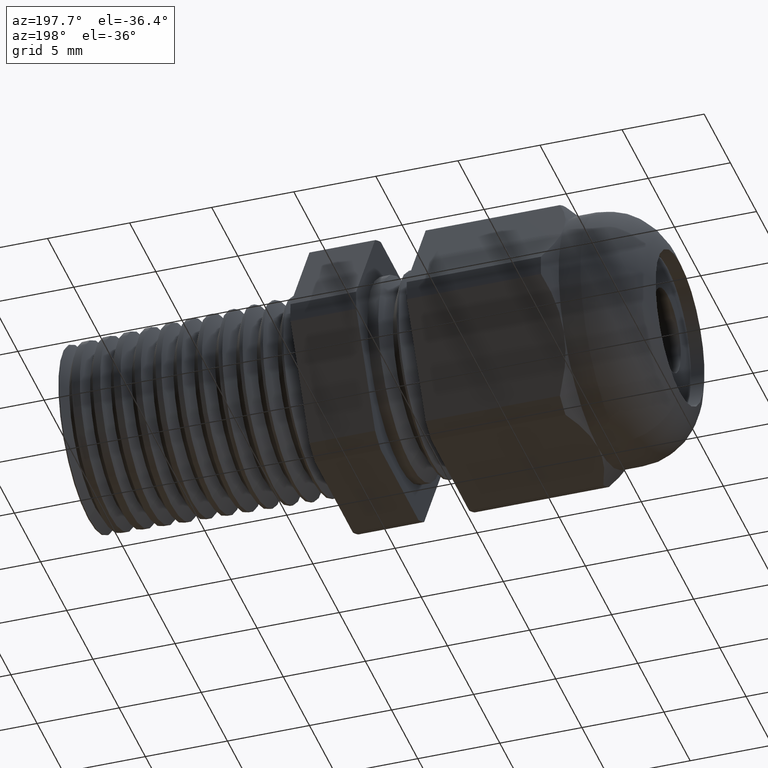
[diagram: clean part render]
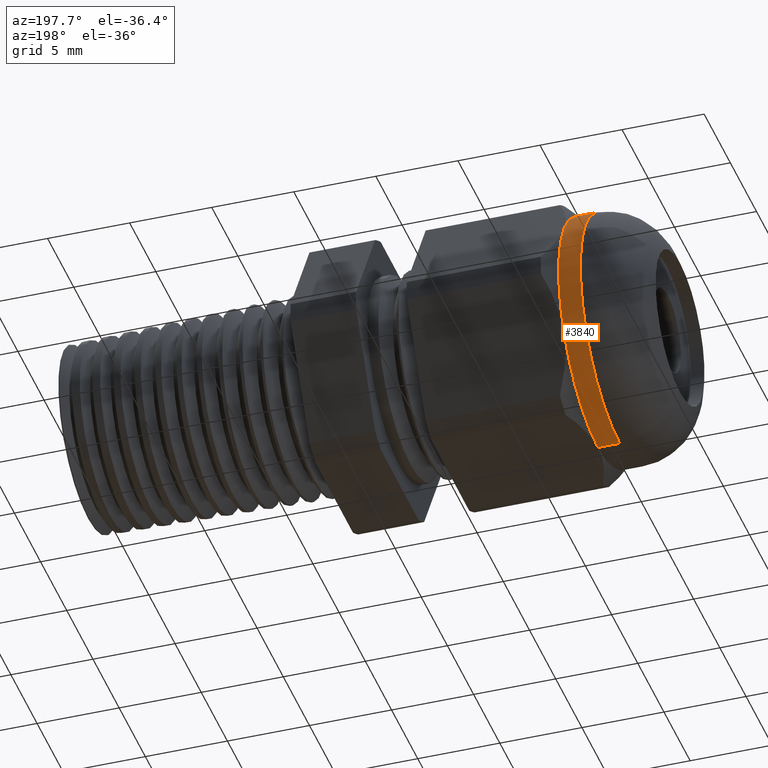
[diagram: same view with one face highlighted and labeled with its STEP entity id]
A machine part, auxiliary view. The second image highlights one B-rep face of the part: STEP entity #3840.
In plain terms, the highlighted cylindrical surface (partial cylindrical patch) has radius 7.493 mm, axis along (1, 0, 0).
Its self-contained STEP definition (entity closure, byte-faithful):
#90 = EDGE_CURVE ( 'NONE', #93, #98, #1406, .T. ) ;
#91 = EDGE_CURVE ( 'NONE', #827, #93, #1401, .T. ) ;
#92 = ORIENTED_EDGE ( 'NONE', *, *, #91, .F. ) ;
#93 = VERTEX_POINT ( 'NONE', #1397 ) ;
#96 = EDGE_CURVE ( 'NONE', #98, #127, #1395, .T. ) ;
#97 = ORIENTED_EDGE ( 'NONE', *, *, #90, .F. ) ;
#98 = VERTEX_POINT ( 'NONE', #1396 ) ;
#124 = ORIENTED_EDGE ( 'NONE', *, *, #96, .F. ) ;
#127 = VERTEX_POINT ( 'NONE', #1457 ) ;
#137 = VERTEX_POINT ( 'NONE', #1439 ) ;
#141 = ORIENTED_EDGE ( 'NONE', *, *, #142, .F. ) ;
#142 = EDGE_CURVE ( 'NONE', #127, #137, #1500, .T. ) ;
#826 = EDGE_CURVE ( 'NONE', #827, #828, #2628, .T. ) ;
#827 = VERTEX_POINT ( 'NONE', #2623 ) ;
#828 = VERTEX_POINT ( 'NONE', #2622 ) ;
#1391 = DIRECTION ( 'NONE',  ( 0.0000000000000000000, 0.0000000000000000000, -1.000000000000000000 ) ) ;
#1392 = DIRECTION ( 'NONE',  ( 1.000000000000000000, 0.0000000000000000000, 0.0000000000000000000 ) ) ;
#1393 = CARTESIAN_POINT ( 'NONE',  ( -0.9431496062992125200, 0.0000000000000000000, 0.0000000000000000000 ) ) ;
#1394 = AXIS2_PLACEMENT_3D ( 'NONE', #1393, #1392, #1391 ) ;
#1395 = CIRCLE ( 'NONE', #1394, 0.2949999999999999800 ) ;
#1396 = CARTESIAN_POINT ( 'NONE',  ( -0.9431496062992125200, 0.2554774941164095200, -0.1474999999999999900 ) ) ;
#1397 = CARTESIAN_POINT ( 'NONE',  ( -0.9431496062992125200, 0.0000000000000000000, -0.2950000000000001500 ) ) ;
#1398 = DIRECTION ( 'NONE',  ( 1.000000000000000000, 0.0000000000000000000, 0.0000000000000000000 ) ) ;
#1399 = VECTOR ( 'NONE', #1398, 39.37007874015748100 ) ;
#1400 = CARTESIAN_POINT ( 'NONE',  ( 0.0000000000000000000, 0.0000000000000000000, -0.2949999999999999800 ) ) ;
#1401 = LINE ( 'NONE', #1400, #1399 ) ;
#1402 = DIRECTION ( 'NONE',  ( 0.0000000000000000000, 0.0000000000000000000, -1.000000000000000000 ) ) ;
#1403 = DIRECTION ( 'NONE',  ( 1.000000000000000000, 0.0000000000000000000, 0.0000000000000000000 ) ) ;
#1404 = CARTESIAN_POINT ( 'NONE',  ( -0.9431496062992125200, 0.0000000000000000000, 0.0000000000000000000 ) ) ;
#1405 = AXIS2_PLACEMENT_3D ( 'NONE', #1404, #1403, #1402 ) ;
#1406 = CIRCLE ( 'NONE', #1405, 0.2949999999999999800 ) ;
#1439 = CARTESIAN_POINT ( 'NONE',  ( -0.9431496062992125200, 0.0000000000000000000, 0.2949999999999997100 ) ) ;
#1457 = CARTESIAN_POINT ( 'NONE',  ( -0.9431496062992125200, 0.2554774941164094100, 0.1475000000000000800 ) ) ;
#1496 = DIRECTION ( 'NONE',  ( 0.0000000000000000000, 0.0000000000000000000, -1.000000000000000000 ) ) ;
#1497 = DIRECTION ( 'NONE',  ( 1.000000000000000000, 0.0000000000000000000, 0.0000000000000000000 ) ) ;
#1498 = CARTESIAN_POINT ( 'NONE',  ( -0.9431496062992125200, 0.0000000000000000000, 0.0000000000000000000 ) ) ;
#1499 = AXIS2_PLACEMENT_3D ( 'NONE', #1498, #1497, #1496 ) ;
#1500 = CIRCLE ( 'NONE', #1499, 0.2949999999999999800 ) ;
#2622 = CARTESIAN_POINT ( 'NONE',  ( -0.9950916237755731400, 3.612708057484692000E-017, 0.2949999999999999800 ) ) ;
#2623 = CARTESIAN_POINT ( 'NONE',  ( -0.9950916237755731400, 0.0000000000000000000, -0.2949999999999999800 ) ) ;
#2624 = DIRECTION ( 'NONE',  ( 0.0000000000000000000, 0.0000000000000000000, 1.000000000000000000 ) ) ;
#2625 = DIRECTION ( 'NONE',  ( 1.000000000000000000, 0.0000000000000000000, 0.0000000000000000000 ) ) ;
#2626 = CARTESIAN_POINT ( 'NONE',  ( -0.9950916237755731400, 0.0000000000000000000, 0.0000000000000000000 ) ) ;
#2627 = AXIS2_PLACEMENT_3D ( 'NONE', #2626, #2625, #2624 ) ;
#2628 = CIRCLE ( 'NONE', #2627, 0.2949999999999999800 ) ;
#3548 = DIRECTION ( 'NONE',  ( 0.0000000000000000000, 0.0000000000000000000, -1.000000000000000000 ) ) ;
#3549 = DIRECTION ( 'NONE',  ( 1.000000000000000000, 0.0000000000000000000, 0.0000000000000000000 ) ) ;
#3550 = CARTESIAN_POINT ( 'NONE',  ( 0.0000000000000000000, 0.0000000000000000000, 0.0000000000000000000 ) ) ;
#3551 = AXIS2_PLACEMENT_3D ( 'NONE', #3550, #3549, #3548 ) ;
#3553 = CYLINDRICAL_SURFACE ( 'NONE', #3551, 0.2949999999999999800 ) ;
#3554 = FACE_OUTER_BOUND ( 'NONE', #3844, .T. ) ;
#3555 = DIRECTION ( 'NONE',  ( 1.000000000000000000, 0.0000000000000000000, 0.0000000000000000000 ) ) ;
#3556 = VECTOR ( 'NONE', #3555, 39.37007874015748100 ) ;
#3557 = CARTESIAN_POINT ( 'NONE',  ( 0.0000000000000000000, 3.612708057484692000E-017, 0.2949999999999999800 ) ) ;
#3558 = LINE ( 'NONE', #3557, #3556 ) ;
#3839 = EDGE_CURVE ( 'NONE', #828, #137, #3558, .T. ) ;
#3840 = ADVANCED_FACE ( 'NONE', ( #3554 ), #3553, .T. ) ;
#3843 = ORIENTED_EDGE ( 'NONE', *, *, #3839, .T. ) ;
#3844 = EDGE_LOOP ( 'NONE', ( #3845, #3843, #141, #124, #97, #92 ) ) ;
#3845 = ORIENTED_EDGE ( 'NONE', *, *, #826, .T. ) ;